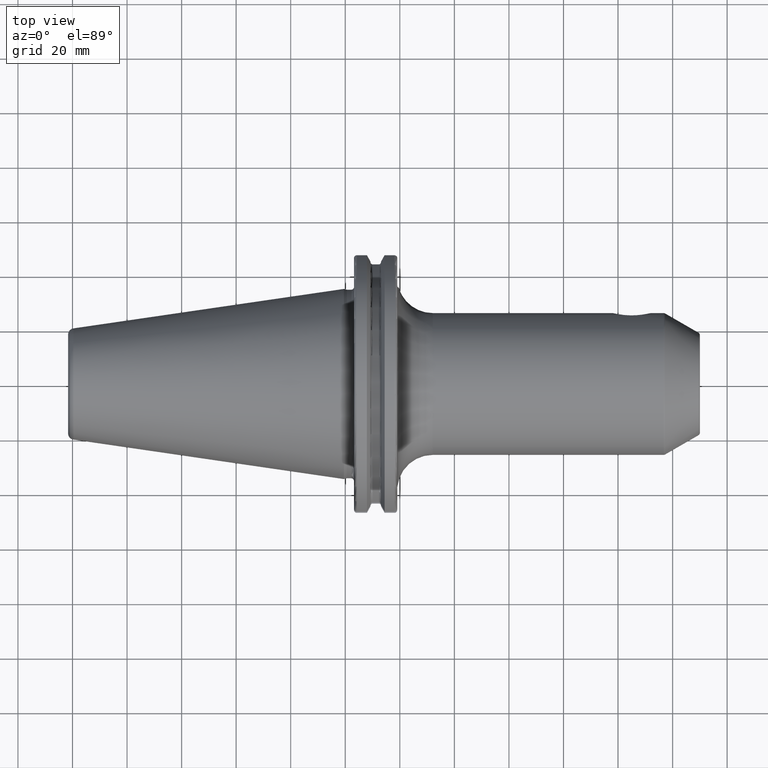
[diagram: clean part render]
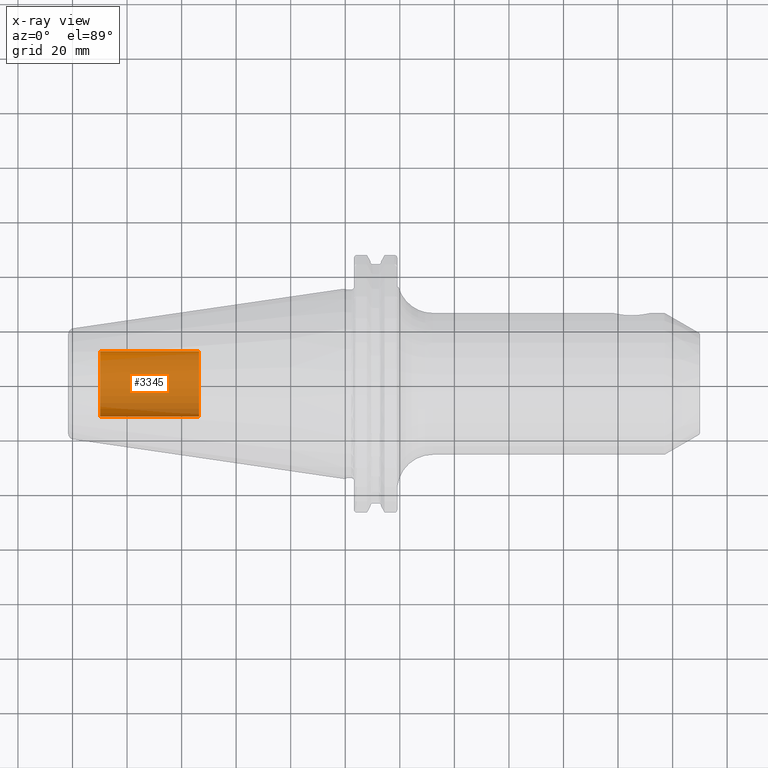
[diagram: x-ray — body ghosted, one internal face saturated and labeled with its STEP entity id]
A machine part, top view, then the same camera in x-ray: the body is ghosted and one INTERNAL B-rep face — a face not visible from any outside direction — is saturated and labeled: STEP entity #3345.
In plain terms, the highlighted cylindrical surface (edge-blend (fillet) strip) has radius 12.0032 mm, axis along (1, 0, 0).
Its self-contained STEP definition (entity closure, byte-faithful):
#3280=CARTESIAN_POINT('',(-8.985E1,0.E0,0.E0));
#3281=DIRECTION('',(-1.E0,0.E0,0.E0));
#3282=DIRECTION('',(0.E0,1.E0,0.E0));
#3283=AXIS2_PLACEMENT_3D('',#3280,#3281,#3282);
#3285=DIRECTION('',(1.E0,0.E0,0.E0));
#3286=VECTOR('',#3285,3.625E1);
#3287=CARTESIAN_POINT('',(-8.985E1,-1.200325E1,0.E0));
#3288=LINE('',#3287,#3286);
#3294=DIRECTION('',(1.E0,0.E0,0.E0));
#3295=VECTOR('',#3294,3.625E1);
#3296=CARTESIAN_POINT('',(-8.985E1,1.200325E1,0.E0));
#3297=LINE('',#3296,#3295);
#3303=CARTESIAN_POINT('',(-5.36E1,0.E0,0.E0));
#3304=DIRECTION('',(1.E0,0.E0,0.E0));
#3305=DIRECTION('',(0.E0,-1.E0,0.E0));
#3306=AXIS2_PLACEMENT_3D('',#3303,#3304,#3305);
#3318=CARTESIAN_POINT('',(-8.985E1,1.200325E1,0.E0));
#3319=CARTESIAN_POINT('',(-8.985E1,-1.200325E1,0.E0));
#3320=VERTEX_POINT('',#3318);
#3321=VERTEX_POINT('',#3319);
#3322=CARTESIAN_POINT('',(-5.36E1,1.200325E1,0.E0));
#3323=CARTESIAN_POINT('',(-5.36E1,-1.200325E1,0.E0));
#3324=VERTEX_POINT('',#3322);
#3325=VERTEX_POINT('',#3323);
#3330=CARTESIAN_POINT('',(-8.985E1,0.E0,0.E0));
#3331=DIRECTION('',(1.E0,0.E0,0.E0));
#3332=DIRECTION('',(0.E0,1.E0,0.E0));
#3333=AXIS2_PLACEMENT_3D('',#3330,#3331,#3332);
#3334=CYLINDRICAL_SURFACE('',#3333,1.200325E1);
#3336=ORIENTED_EDGE('',*,*,#3335,.T.);
#3338=ORIENTED_EDGE('',*,*,#3337,.T.);
#3340=ORIENTED_EDGE('',*,*,#3339,.T.);
#3342=ORIENTED_EDGE('',*,*,#3341,.F.);
#3343=EDGE_LOOP('',(#3336,#3338,#3340,#3342));
#3344=FACE_OUTER_BOUND('',#3343,.F.);
#3345=ADVANCED_FACE('',(#3344),#3334,.T.);
#3284=CIRCLE('',#3283,1.200325E1);
#3307=CIRCLE('',#3306,1.200325E1);
#3335=EDGE_CURVE('',#3320,#3321,#3284,.T.);
#3337=EDGE_CURVE('',#3321,#3325,#3288,.T.);
#3339=EDGE_CURVE('',#3325,#3324,#3307,.T.);
#3341=EDGE_CURVE('',#3320,#3324,#3297,.T.);